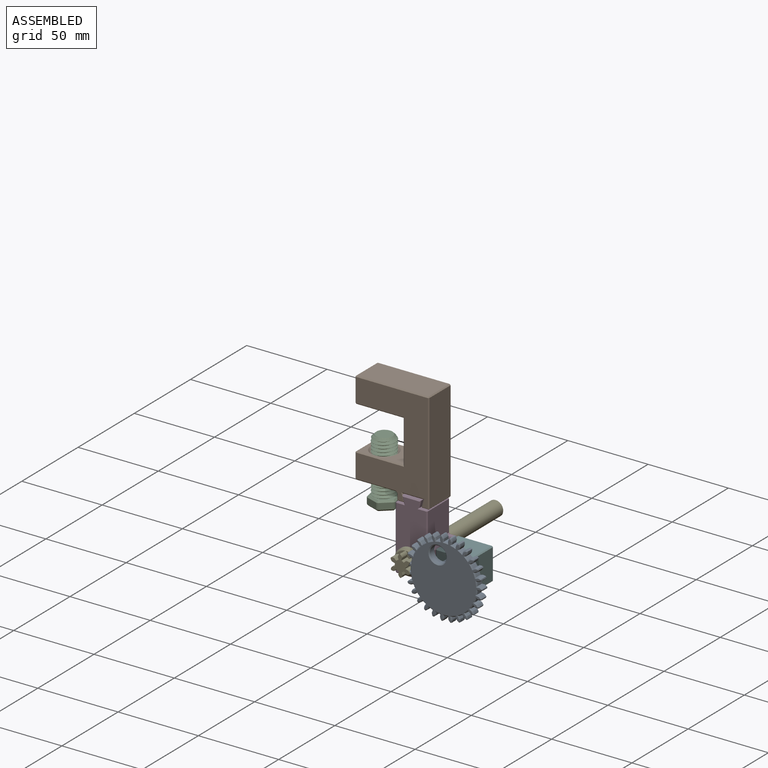
[diagram: assembled view]
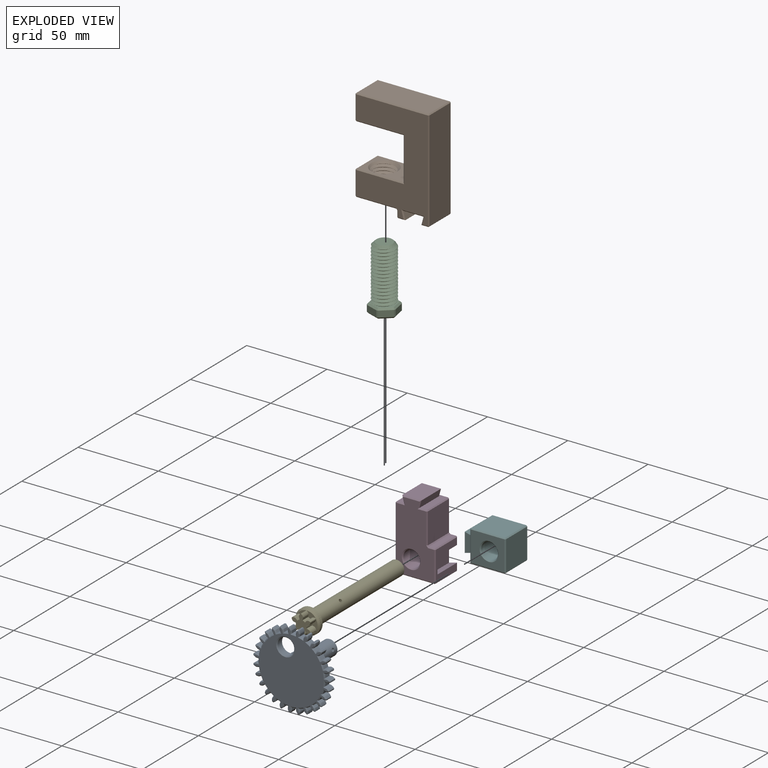
[diagram: exploded view]
GUIDED TOUR — MATED ASSEMBLY (Onshape document 58f9ea86d3237f107af40d6b, AutoMate assembly 58f9ea86d3237f107af40d6b_fdeb87faa406c52679d574de_d51cf69930491064aa4fa86d_default)

This assembly has 6 components, labeled P0..P5 below (a component is one placed occurrence of a part; the same part can appear more than once), held together by 5 mates. A mate is a constraint between two components; its type names the relative motion it leaves free:
  CYLINDRICAL — leaves both rotation about and translation along the listed axis free,
  SLIDER — leaves translation along the listed axis free.
Axis/direction vectors are unit vectors and 'through' points are millimeter coordinates, both in the assembly's world frame.

MATES
  1. SLIDER "Slider 1": P3 <-> P5, axis (0.000, 1.000, 0.000) through (12.40, -8.70, -34.99) mm
  2. CYLINDRICAL "Set Screw Mate": P2 <-> P1, axis (0.000, 0.000, 1.000) through (-24.65, 0.70, 24.96) mm
  3. SLIDER "Slider 2": P3 <-> P1, axis (0.000, 1.000, 0.000) through (0.00, 7.30, -2.40) mm
  4. CYLINDRICAL "Cylindrical 2": P4 <-> P3, axis (0.000, 1.000, 0.000) through (0.00, 64.46, -34.74) mm
  5. CYLINDRICAL "Cylindrical 1": P0 <-> P5, axis (0.000, 1.000, 0.000) through (26.74, 14.02, -34.99) mm

ASSEMBLY ORDER
  1. P3 — the base component [order heuristic]
  2. P1 — core [order heuristic]
  3. P4 — core [order heuristic]
  4. P0 — core [order heuristic]
  5. P2 — core [order heuristic]
  6. P5 [order verified]
Order-tag legend:
  [order verified] — this step's position reverses a verified removal order: the component was checked to insert without passing through the ones already placed.
  [order heuristic] — the first 5 components form the assembly's core: parts whose collision-free extraction could not be verified, listed in mate-graph order.

Of the 6 components, 4 carry the full construction recipe — the FeatureScript program that regenerates the part's solid from scratch; the rest are supplied as boundary geometry only.
Each toured component is shown spotlighted twice — in the assembled view, then in the exploded view, where a leader line traces a displaced component back to its assembled socket (saturated green if recipe-attached, orange if geometry-only; every other component desaturated gray) — followed by its recipe or geometry summary and the mates that hold it.
NOTE — document 2 of 2 of this assembly tour. The two overview renders and the header above are repeated from document 1; the component sections below continue where the previous document stopped.
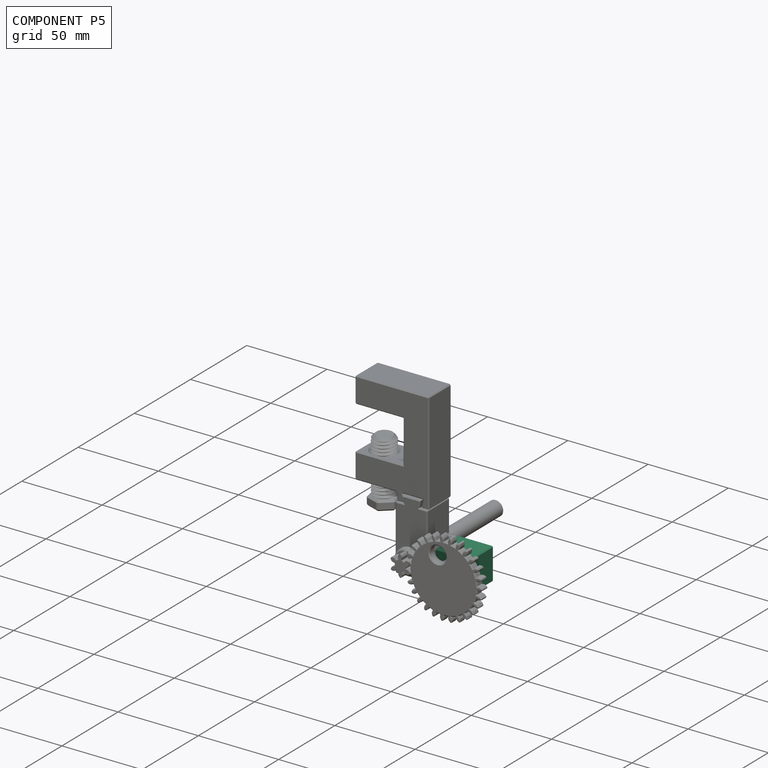
[diagram: component P5 — assembled]
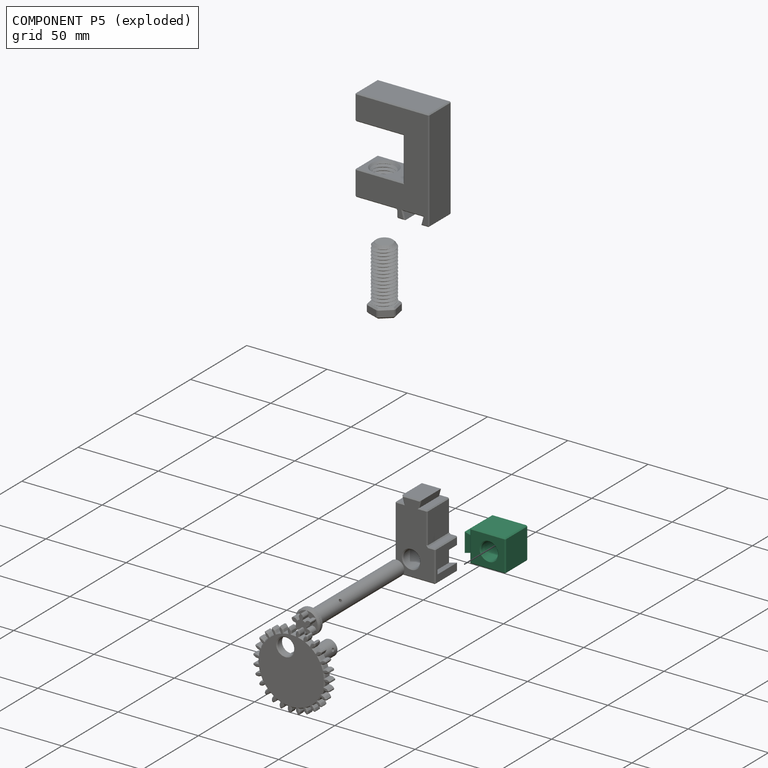
[diagram: component P5 — exploded]
COMPONENT P5 — recipe-attached (CADFS 00727182, mesh-verified: the recipe's output STEP matches this component's geometry to below the mesh-comparison resolution (tessellation chordal tolerance ~0.0584 mm)).
Held by: SLIDER mate "Slider 1" to P3; CYLINDRICAL mate "Cylindrical 1" to P0.
Construction recipe (FeatureScript — the CAD program that rebuilds this solid; sketch coordinates are in the units given by the * unit suffixes, e.g. mm):

FeatureScript 1511;
import(path : "onshape/std/geometry.fs", version : "1511.0");
import(path : "onshape/std/common.fs", version : "1511.0");
const mm = millimeter;
const VERTEX = EntityType.VERTEX;
const EDGE = EntityType.EDGE;
const FACE = EntityType.FACE;
const BODY = EntityType.BODY;
function v(x, y){return vector(x, y);}
function OD(order){return orderDisambiguation(order);}
function OSD(set){return originalSetDisambiguation(set);}
function TD(topology){return topologyDisambiguation(topology);}
function TDD(query){return trueDependencyDisambiguation(query);}
function sQuery(a, b, c) {return sketchEntityQuery(a, b, c);}

annotation { "Feature Type Name" : "Feature", "Feature Type Description" : "" }
export const myFeature = defineFeature(function(context is Context, id is Id, definition is map)
    precondition{}
    {
        {
            assignVariable(context, id + "F0", {"name" : "ClampThickness", "anyValue" : 20});
        }
        {
            assignVariable(context, id + "F1", {"name" : "DovetailBackstopDepth", "anyValue" : 2});
        }
        {
            var Q0;
            Q0=qCreatedBy(makeId("Top.planeOp"),FACE);
            var sketch = newSketch(context, id + "F2", { "sketchPlane" : qUnion([Q0])});
            skLineSegment(sketch, "E0", {"start": v(0, 22.25) * mm, "end": v(5.25, 22.25) * mm});
            skLineSegment(sketch, "E1", {"start": v(5.25, 22.25) * mm, "end": v(4.04, 26.75) * mm});
            skLineSegment(sketch, "E2", {"start": v(4.04, 26.75) * mm, "end": v(15.96, 26.75) * mm});
            skLineSegment(sketch, "E3", {"start": v(15.96, 26.75) * mm, "end": v(14.75, 22.25) * mm});
            skLineSegment(sketch, "E4", {"start": v(14.75, 22.25) * mm, "end": v(20, 22.25) * mm});
            skLineSegment(sketch, "E5", {"start": v(0, 22.25) * mm, "end": v(0, 0) * mm});
            skLineSegment(sketch, "E6", {"start": v(0, 0) * mm, "end": v(20, 0) * mm});
            skLineSegment(sketch, "E7", {"start": v(20, 0) * mm, "end": v(20, 22.25) * mm});
            skLineSegment(sketch, "E8", {"start": v(10, 0) * mm, "end": v(10, 26.75) * mm, "construction": true});
            skCircle(sketch, "E9", {"center": v(10, 10.25) * mm, "radius": 5.25 * mm});
            skLineSegment(sketch, "E10", {"start": v(5.25, 22.25) * mm, "end": v(14.75, 22.25) * mm});
            skSolve(sketch);
        }
        {
            var Q0;
            {var subQ3=sQuery(id+"F2.wireOp",EDGE,"E0");Q0=makeQuery(id+"F2.imprint","IMPRINT",FACE,{"disambiguationData":[TD([[makeQuery(id+"F2.imprint","IMPRINT",EDGE,{"derivedFrom":subQ3}),-1.0]])]});}
            var Q1;
            {var subQ0=sQuery(id+"F2.wireOp",EDGE,"VYWeHY0D-dY77-4kFr-xTyd-c2evzxD8G3UU");Q1=makeQuery(id+"F2.imprint","IMPRINT",FACE,{"disambiguationData":[TD([[makeQuery(id+"F2.imprint","IMPRINT",EDGE,{"derivedFrom":subQ0}),-1.0]])]});}
            var Q2;
            {var subQ0=sQuery(id+"F2.wireOp",EDGE,"xa0Oe4SL-IEjK-Ohqs-II2J-3vTqthCB0wox");Q2=makeQuery(id+"F2.imprint","IMPRINT",FACE,{"disambiguationData":[TD([[makeQuery(id+"F2.imprint","IMPRINT",EDGE,{"derivedFrom":subQ0}),-1.0]])]});}
            extrude(context, id + "F3", {"entities" : qUnion([Q0, Q1, Q2]), "depth" : (getVariable(context, 'ClampThickness')) * mm});
        }
        {
            var Q0;
            Q0=makeQuery(id+"F2.imprint","IMPRINT",FACE,{"disambiguationData":[TD([[makeQuery(id+"F2.imprint","IMPRINT",EDGE,{"derivedFrom":sQuery(id+"F2.wireOp",EDGE,"E1")}),-1.0]])]});
            extrude(context, id + "F4", {"entities" : qUnion([Q0]), "operationType" : NewBodyOperationType.ADD, "depth" : (getVariable(context, 'ClampThickness') - getVariable(context, 'DovetailBackstopDepth')) * mm});
        }
        {
            var Q0;
            {var subQ0=sQuery(id+"F2.wireOp",EDGE,"E10");var subQ1=sQuery(id+"F2.wireOp",EDGE,"98ce6dfb-64ee-43a4-b6a5-ae194eb404b20.MirrorCS");var subQ2=sQuery(id+"F2.wireOp",EDGE,"ohmSc0VC-r7ha-bODf-CrWD-XmSzwEfXU5ou");var subQ3=sQuery(id+"F2.wireOp",EDGE,"0MaYhBST-z4TI-CUlx-1Ce4-Bb947fno3LJP");var subQ4=sQuery(id+"F2.wireOp",EDGE,"E5");Q0=makeQuery(id+"F4.boolean.opBoolean","MERGE",FACE,{"derivedFrom":[makeQuery(id+"FvwmsusxJ3vFSSD_1.boolean.opBoolean","MERGE",FACE,{"derivedFrom":[makeQuery(id+"F3.opExtrude","CAP_FACE",FACE,{"disambiguationData":[OSD([sQuery(id+"F2.wireOp",EDGE,"E0"),sQuery(id+"F2.wireOp",EDGE,"E4"),subQ4,sQuery(id+"F2.wireOp",EDGE,"E6"),sQuery(id+"F2.wireOp",EDGE,"E7"),sQuery(id+"F2.wireOp",EDGE,"E9"),subQ0,sQuery(id+"F2.wireOp",EDGE,"xa0Oe4SL-IEjK-Ohqs-II2J-3vTqthCB0wox"),subQ3,sQuery(id+"F2.wireOp",EDGE,"VYWeHY0D-dY77-4kFr-xTyd-c2evzxD8G3UU"),subQ2,subQ1])],"isStart":true}),makeQuery(id+"FvwmsusxJ3vFSSD_1.opExtrude","CAP_FACE",FACE,{"disambiguationData":[OSD([subQ4,subQ3,subQ2,subQ1])],"isStart":true})]}),makeQuery(id+"F4.opExtrude","CAP_FACE",FACE,{"disambiguationData":[OSD([sQuery(id+"F2.wireOp",EDGE,"E1"),sQuery(id+"F2.wireOp",EDGE,"E2"),sQuery(id+"F2.wireOp",EDGE,"E3"),subQ0])],"isStart":true})]});}
            var Q1;
            Q1=makeQuery(id+"F3.opExtrude","CAP_FACE",FACE,{"disambiguationData":[OSD([sQuery(id+"F2.wireOp",EDGE,"E0"),sQuery(id+"F2.wireOp",EDGE,"E4"),sQuery(id+"F2.wireOp",EDGE,"E5"),sQuery(id+"F2.wireOp",EDGE,"E6"),sQuery(id+"F2.wireOp",EDGE,"E7"),sQuery(id+"F2.wireOp",EDGE,"E9"),sQuery(id+"F2.wireOp",EDGE,"E10"),sQuery(id+"F2.wireOp",EDGE,"xa0Oe4SL-IEjK-Ohqs-II2J-3vTqthCB0wox"),sQuery(id+"F2.wireOp",EDGE,"0MaYhBST-z4TI-CUlx-1Ce4-Bb947fno3LJP"),sQuery(id+"F2.wireOp",EDGE,"VYWeHY0D-dY77-4kFr-xTyd-c2evzxD8G3UU"),sQuery(id+"F2.wireOp",EDGE,"ohmSc0VC-r7ha-bODf-CrWD-XmSzwEfXU5ou"),sQuery(id+"F2.wireOp",EDGE,"98ce6dfb-64ee-43a4-b6a5-ae194eb404b20.MirrorCS")])],"isStart":false});
            var Q2;
            Q2=makeQuery(id+"F3.opExtrude","SWEPT_FACE",FACE,{"disambiguationData":[OSD([sQuery(id+"F2.wireOp",EDGE,"E6"),sQuery(id+"F2.wireOp",EDGE,"xa0Oe4SL-IEjK-Ohqs-II2J-3vTqthCB0wox")])]});
            var Q3;
            Q3=makeQuery(id+"F3.opExtrude","SWEPT_FACE",FACE,{"disambiguationData":[OSD([sQuery(id+"F2.wireOp",EDGE,"E7")])]});
            chamfer(context, id + "F5", {"entities" : qUnion([Q0, Q1, Q2, Q3]), "width" : 0.6 * mm, "tangentPropagation" : true});
        }
    });
PROVENANCE & LICENSES
Assembly (occurrences, transforms, mates, per-part STEP geometry): AutoMate dataset, Zenodo record 7776208, CC0.
Construction recipes: CADFS (HuggingFace VladPyatov/CADFS, CC-BY-4.0, layered over the ABC dataset), FeatureScript reconstruction programs keyed by ABC model id.
Join: ABC meta listings map ABC model id -> Onshape documentId; within a shared document, parts are matched by geometric signature (bounding-box dims + volume at 0.1% relative tolerance, exact B-rep face/solid counts).
Verification: 4 of this assembly's 6 components carry a recipe attachment, and every attachment is mesh-verified: the CADFS STEP and the AutoMate member STEP were compared as meshes in their shared local frame (symmetric sampled-point-to-mesh distance); worst across the 4 attachments: below the mesh-comparison resolution (tessellation chordal tolerance ~0.132 mm) on a 88 mm part.
Renders: orthographic iso camera (az 35 / el 25); the floor grid conveys scale (grid pitch printed in each image; no ruler). In the exploded view each component is displaced by its stored offset vector: the offsets alone carry the explosion direction (mate normal/axis signs are not orientation cues and do not encode it), and separation distances are assigned per mate-chain, not proportionally to assembly-order depth.
